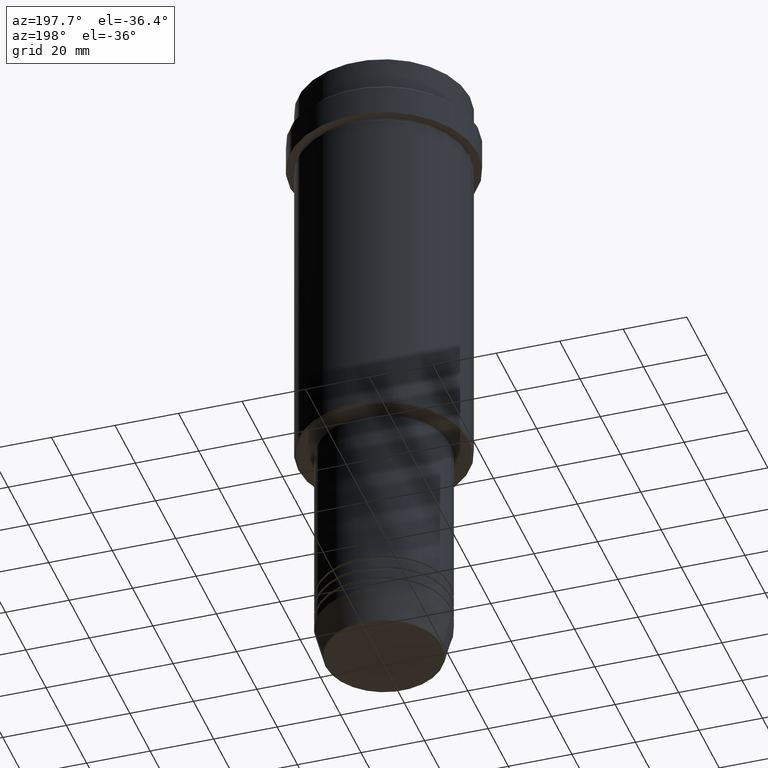
[diagram: clean part render]
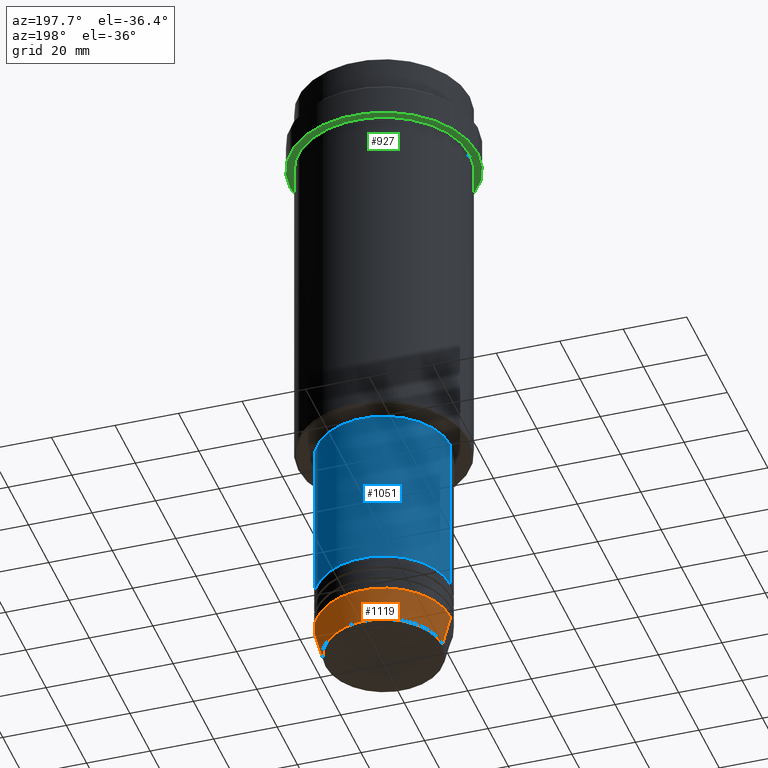
[diagram: same view with three faces highlighted in distinct colors, each labeled with its STEP entity id]
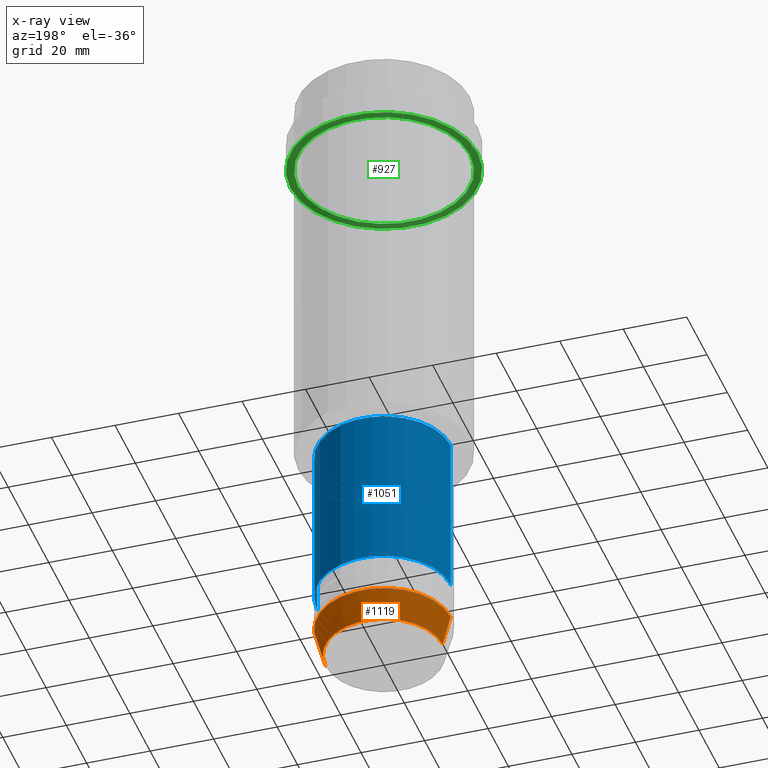
[diagram: x-ray of the same camera — body ghosted, the three highlighted faces saturated]
A machine part, auxiliary view with three faces highlighted in distinct colors.
The next image is the same camera in x-ray (body ghosted, the three faces saturated) — at least one of them is partly hidden behind the body in this view.
Their STEP definitions:

[orange] entity #1119 — the highlighted conical surface has half-angle 15 deg.
#9 = DIRECTION ( 'NONE',  ( -0.000000000000000000, -0.000000000000000000, 1.000000000000000000 ) ) ;
#70 = ORIENTED_EDGE ( 'NONE', *, *, #501, .F. ) ;
#75 = CARTESIAN_POINT ( 'NONE',  ( 0.000000000000000000, 0.000000000000000000, -193.0000000000000000 ) ) ;
#194 = LINE ( 'NONE', #621, #1006 ) ;
#301 = DIRECTION ( 'NONE',  ( 0.2588190451025211836, 0.000000000000000000, 0.9659258262890680902 ) ) ;
#305 = VERTEX_POINT ( 'NONE', #1252 ) ;
#327 = CIRCLE ( 'NONE', #528, 18.41980749484383040 ) ;
#336 = DIRECTION ( 'NONE',  ( -0.000000000000000000, -0.000000000000000000, 1.000000000000000000 ) ) ;
#359 = CARTESIAN_POINT ( 'NONE',  ( -21.00000000000000000, 2.571758278209441661E-15, -193.0000000000000000 ) ) ;
#385 = VERTEX_POINT ( 'NONE', #359 ) ;
#392 = DIRECTION ( 'NONE',  ( -0.2588190451025211836, 3.169619151431770488E-17, 0.9659258262890680902 ) ) ;
#394 = DIRECTION ( 'NONE',  ( -0.000000000000000000, -0.000000000000000000, 1.000000000000000000 ) ) ;
#401 = CONICAL_SURFACE ( 'NONE', #1362, 21.00000000000000000, 0.2617993877991499074 ) ;
#497 = CARTESIAN_POINT ( 'NONE',  ( 21.00000000000000000, 0.000000000000000000, -193.0000000000000000 ) ) ;
#501 = EDGE_CURVE ( 'NONE', #590, #305, #944, .T. ) ;
#510 = EDGE_CURVE ( 'NONE', #613, #385, #194, .T. ) ;
#526 = VECTOR ( 'NONE', #301, 1000.000000000000114 ) ;
#528 = AXIS2_PLACEMENT_3D ( 'NONE', #1320, #336, #986 ) ;
#558 = EDGE_CURVE ( 'NONE', #305, #385, #981, .T. ) ;
#590 = VERTEX_POINT ( 'NONE', #1325 ) ;
#613 = VERTEX_POINT ( 'NONE', #1223 ) ;
#621 = CARTESIAN_POINT ( 'NONE',  ( -21.00000000000000000, 2.571758278209441661E-15, -193.0000000000000000 ) ) ;
#664 = AXIS2_PLACEMENT_3D ( 'NONE', #881, #9, #1332 ) ;
#792 = ORIENTED_EDGE ( 'NONE', *, *, #510, .T. ) ;
#793 = DIRECTION ( 'NONE',  ( 1.000000000000000000, 0.000000000000000000, 0.000000000000000000 ) ) ;
#856 = ORIENTED_EDGE ( 'NONE', *, *, #1087, .T. ) ;
#881 = CARTESIAN_POINT ( 'NONE',  ( 0.000000000000000000, 0.000000000000000000, -193.0000000000000000 ) ) ;
#903 = ORIENTED_EDGE ( 'NONE', *, *, #558, .F. ) ;
#944 = LINE ( 'NONE', #497, #526 ) ;
#981 = CIRCLE ( 'NONE', #664, 21.00000000000000000 ) ;
#986 = DIRECTION ( 'NONE',  ( 1.000000000000000000, 0.000000000000000000, 0.000000000000000000 ) ) ;
#1006 = VECTOR ( 'NONE', #392, 1000.000000000000114 ) ;
#1067 = EDGE_LOOP ( 'NONE', ( #856, #792, #903, #70 ) ) ;
#1087 = EDGE_CURVE ( 'NONE', #590, #613, #327, .T. ) ;
#1119 = ADVANCED_FACE ( 'NONE', ( #1269 ), #401, .T. ) ;
#1223 = CARTESIAN_POINT ( 'NONE',  ( -18.41980749484383040, 2.413767053578267064E-15, -202.6294095225512990 ) ) ;
#1252 = CARTESIAN_POINT ( 'NONE',  ( 21.00000000000000000, 0.000000000000000000, -193.0000000000000000 ) ) ;
#1269 = FACE_OUTER_BOUND ( 'NONE', #1067, .T. ) ;
#1320 = CARTESIAN_POINT ( 'NONE',  ( 0.000000000000000000, 0.000000000000000000, -202.6294095225512990 ) ) ;
#1325 = CARTESIAN_POINT ( 'NONE',  ( 18.41980749484383040, 0.000000000000000000, -202.6294095225512990 ) ) ;
#1332 = DIRECTION ( 'NONE',  ( 1.000000000000000000, 0.000000000000000000, 0.000000000000000000 ) ) ;
#1362 = AXIS2_PLACEMENT_3D ( 'NONE', #75, #394, #793 ) ;

[blue] entity #1051 — the highlighted cylindrical surface (partial cylindrical patch) has radius 21 mm, axis along (-0, -0, 1).
#139 = EDGE_CURVE ( 'NONE', #1096, #669, #1074, .T. ) ;
#140 = CARTESIAN_POINT ( 'NONE',  ( 0.000000000000000000, 0.000000000000000000, 0.000000000000000000 ) ) ;
#153 = CIRCLE ( 'NONE', #826, 21.00000000000000000 ) ;
#170 = EDGE_LOOP ( 'NONE', ( #1083, #1279, #1246, #1363 ) ) ;
#200 = LINE ( 'NONE', #425, #575 ) ;
#208 = CARTESIAN_POINT ( 'NONE',  ( 21.00000000000000000, 0.000000000000000000, -180.9999999999999147 ) ) ;
#248 = FACE_OUTER_BOUND ( 'NONE', #170, .T. ) ;
#290 = DIRECTION ( 'NONE',  ( 1.000000000000000000, 0.000000000000000000, 0.000000000000000000 ) ) ;
#345 = CARTESIAN_POINT ( 'NONE',  ( -21.00000000000000000, 2.571758278209441661E-15, 0.000000000000000000 ) ) ;
#425 = CARTESIAN_POINT ( 'NONE',  ( 21.00000000000000000, 0.000000000000000000, 0.000000000000000000 ) ) ;
#432 = DIRECTION ( 'NONE',  ( 1.000000000000000000, 0.000000000000000000, 0.000000000000000000 ) ) ;
#447 = DIRECTION ( 'NONE',  ( 1.000000000000000000, 0.000000000000000000, 0.000000000000000000 ) ) ;
#473 = DIRECTION ( 'NONE',  ( -0.000000000000000000, -0.000000000000000000, 1.000000000000000000 ) ) ;
#505 = VECTOR ( 'NONE', #541, 1000.000000000000000 ) ;
#541 = DIRECTION ( 'NONE',  ( -0.000000000000000000, -0.000000000000000000, 1.000000000000000000 ) ) ;
#563 = DIRECTION ( 'NONE',  ( -0.000000000000000000, -0.000000000000000000, 1.000000000000000000 ) ) ;
#575 = VECTOR ( 'NONE', #626, 1000.000000000000000 ) ;
#608 = CARTESIAN_POINT ( 'NONE',  ( 0.000000000000000000, 0.000000000000000000, -129.0000000000000284 ) ) ;
#626 = DIRECTION ( 'NONE',  ( -0.000000000000000000, -0.000000000000000000, 1.000000000000000000 ) ) ;
#637 = CARTESIAN_POINT ( 'NONE',  ( 0.000000000000000000, 0.000000000000000000, -180.9999999999999147 ) ) ;
#642 = AXIS2_PLACEMENT_3D ( 'NONE', #140, #563, #447 ) ;
#669 = VERTEX_POINT ( 'NONE', #712 ) ;
#692 = EDGE_CURVE ( 'NONE', #1347, #669, #1382, .T. ) ;
#712 = CARTESIAN_POINT ( 'NONE',  ( -21.00000000000000000, 2.571758278209441661E-15, -129.0000000000000284 ) ) ;
#755 = AXIS2_PLACEMENT_3D ( 'NONE', #608, #473, #290 ) ;
#826 = AXIS2_PLACEMENT_3D ( 'NONE', #637, #1079, #432 ) ;
#829 = VERTEX_POINT ( 'NONE', #208 ) ;
#934 = EDGE_CURVE ( 'NONE', #829, #1096, #153, .T. ) ;
#1051 = ADVANCED_FACE ( 'NONE', ( #248 ), #1341, .T. ) ;
#1074 = LINE ( 'NONE', #345, #505 ) ;
#1079 = DIRECTION ( 'NONE',  ( -0.000000000000000000, -0.000000000000000000, 1.000000000000000000 ) ) ;
#1083 = ORIENTED_EDGE ( 'NONE', *, *, #934, .T. ) ;
#1096 = VERTEX_POINT ( 'NONE', #1247 ) ;
#1246 = ORIENTED_EDGE ( 'NONE', *, *, #692, .F. ) ;
#1247 = CARTESIAN_POINT ( 'NONE',  ( -21.00000000000000000, 2.571758278209441661E-15, -180.9999999999999147 ) ) ;
#1279 = ORIENTED_EDGE ( 'NONE', *, *, #139, .T. ) ;
#1341 = CYLINDRICAL_SURFACE ( 'NONE', #642, 21.00000000000000000 ) ;
#1347 = VERTEX_POINT ( 'NONE', #1385 ) ;
#1354 = EDGE_CURVE ( 'NONE', #829, #1347, #200, .T. ) ;
#1363 = ORIENTED_EDGE ( 'NONE', *, *, #1354, .F. ) ;
#1382 = CIRCLE ( 'NONE', #755, 21.00000000000000000 ) ;
#1385 = CARTESIAN_POINT ( 'NONE',  ( 21.00000000000000000, 0.000000000000000000, -129.0000000000000284 ) ) ;

[green] entity #927 — the highlighted planar face has unit normal (0, 0, -1).
#3 = EDGE_CURVE ( 'NONE', #686, #578, #524, .T. ) ;
#6 = CIRCLE ( 'NONE', #483, 29.49999999999999645 ) ;
#10 = AXIS2_PLACEMENT_3D ( 'NONE', #967, #1184, #213 ) ;
#43 = EDGE_CURVE ( 'NONE', #1124, #479, #6, .T. ) ;
#58 = CARTESIAN_POINT ( 'NONE',  ( -26.99999999999999645, 0.000000000000000000, -22.00000000000000711 ) ) ;
#77 = EDGE_CURVE ( 'NONE', #479, #1124, #936, .T. ) ;
#87 = CARTESIAN_POINT ( 'NONE',  ( 0.000000000000000000, 0.000000000000000000, -22.00000000000000711 ) ) ;
#134 = DIRECTION ( 'NONE',  ( -1.000000000000000000, 0.000000000000000000, 0.000000000000000000 ) ) ;
#213 = DIRECTION ( 'NONE',  ( -1.000000000000000000, 0.000000000000000000, -0.000000000000000000 ) ) ;
#235 = AXIS2_PLACEMENT_3D ( 'NONE', #87, #513, #950 ) ;
#319 = FACE_OUTER_BOUND ( 'NONE', #1010, .T. ) ;
#479 = VERTEX_POINT ( 'NONE', #502 ) ;
#483 = AXIS2_PLACEMENT_3D ( 'NONE', #1054, #606, #515 ) ;
#502 = CARTESIAN_POINT ( 'NONE',  ( 29.49999999999999645, 0.000000000000000000, -22.00000000000000711 ) ) ;
#513 = DIRECTION ( 'NONE',  ( -0.000000000000000000, -0.000000000000000000, 1.000000000000000000 ) ) ;
#515 = DIRECTION ( 'NONE',  ( 1.000000000000000000, 0.000000000000000000, 0.000000000000000000 ) ) ;
#524 = CIRCLE ( 'NONE', #616, 26.99999999999999645 ) ;
#543 = DIRECTION ( 'NONE',  ( -0.000000000000000000, -0.000000000000000000, 1.000000000000000000 ) ) ;
#578 = VERTEX_POINT ( 'NONE', #1120 ) ;
#595 = CARTESIAN_POINT ( 'NONE',  ( -29.49999999999999645, 3.612708057484690815E-15, -22.00000000000000711 ) ) ;
#606 = DIRECTION ( 'NONE',  ( -0.000000000000000000, -0.000000000000000000, 1.000000000000000000 ) ) ;
#616 = AXIS2_PLACEMENT_3D ( 'NONE', #937, #1282, #822 ) ;
#665 = AXIS2_PLACEMENT_3D ( 'NONE', #1222, #543, #134 ) ;
#686 = VERTEX_POINT ( 'NONE', #58 ) ;
#718 = ORIENTED_EDGE ( 'NONE', *, *, #3, .T. ) ;
#748 = PLANE ( 'NONE',  #10 ) ;
#822 = DIRECTION ( 'NONE',  ( -1.000000000000000000, 0.000000000000000000, 0.000000000000000000 ) ) ;
#927 = ADVANCED_FACE ( 'NONE', ( #1298, #319 ), #748, .T. ) ;
#936 = CIRCLE ( 'NONE', #235, 29.49999999999999645 ) ;
#937 = CARTESIAN_POINT ( 'NONE',  ( 0.000000000000000000, 0.000000000000000000, -22.00000000000000711 ) ) ;
#950 = DIRECTION ( 'NONE',  ( 1.000000000000000000, 0.000000000000000000, 0.000000000000000000 ) ) ;
#967 = CARTESIAN_POINT ( 'NONE',  ( 0.000000000000000000, 29.49999999999999645, -22.00000000000000711 ) ) ;
#994 = ORIENTED_EDGE ( 'NONE', *, *, #1045, .T. ) ;
#1010 = EDGE_LOOP ( 'NONE', ( #1375, #1234 ) ) ;
#1045 = EDGE_CURVE ( 'NONE', #578, #686, #1059, .T. ) ;
#1054 = CARTESIAN_POINT ( 'NONE',  ( 0.000000000000000000, 0.000000000000000000, -22.00000000000000711 ) ) ;
#1059 = CIRCLE ( 'NONE', #665, 26.99999999999999645 ) ;
#1120 = CARTESIAN_POINT ( 'NONE',  ( 26.99999999999999645, 3.306546357697853339E-15, -22.00000000000000711 ) ) ;
#1124 = VERTEX_POINT ( 'NONE', #595 ) ;
#1184 = DIRECTION ( 'NONE',  ( 0.000000000000000000, 0.000000000000000000, -1.000000000000000000 ) ) ;
#1222 = CARTESIAN_POINT ( 'NONE',  ( 0.000000000000000000, 0.000000000000000000, -22.00000000000000711 ) ) ;
#1234 = ORIENTED_EDGE ( 'NONE', *, *, #43, .F. ) ;
#1282 = DIRECTION ( 'NONE',  ( -0.000000000000000000, -0.000000000000000000, 1.000000000000000000 ) ) ;
#1298 = FACE_BOUND ( 'NONE', #1340, .T. ) ;
#1340 = EDGE_LOOP ( 'NONE', ( #718, #994 ) ) ;
#1375 = ORIENTED_EDGE ( 'NONE', *, *, #77, .F. ) ;